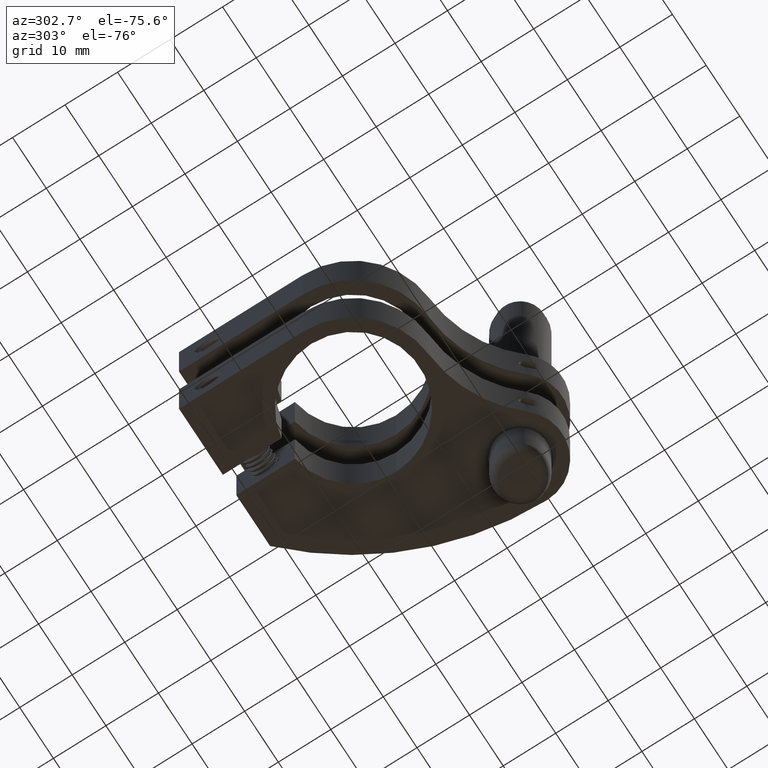
[diagram: clean part render]
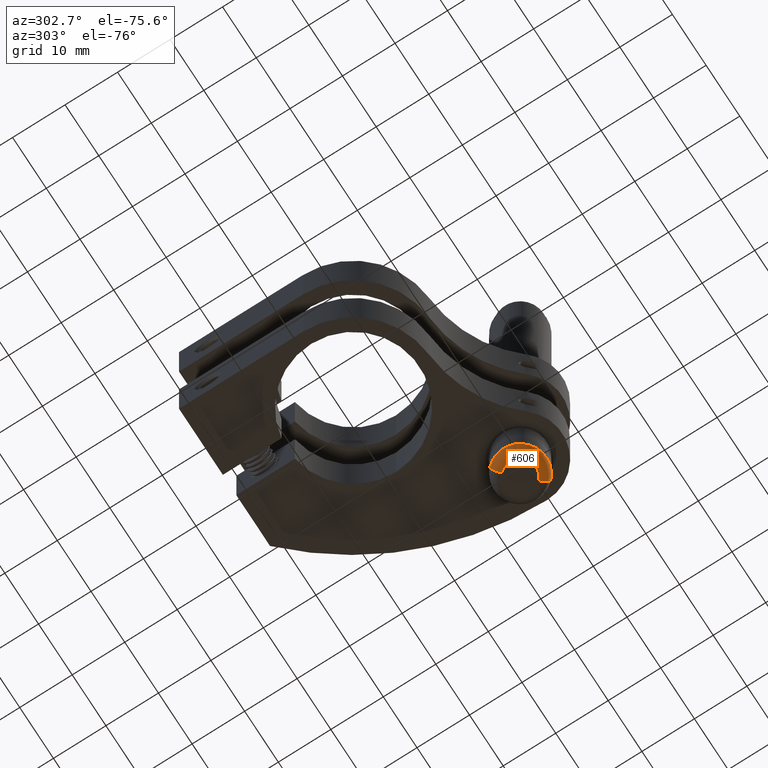
[diagram: same view with one face highlighted and labeled with its STEP entity id]
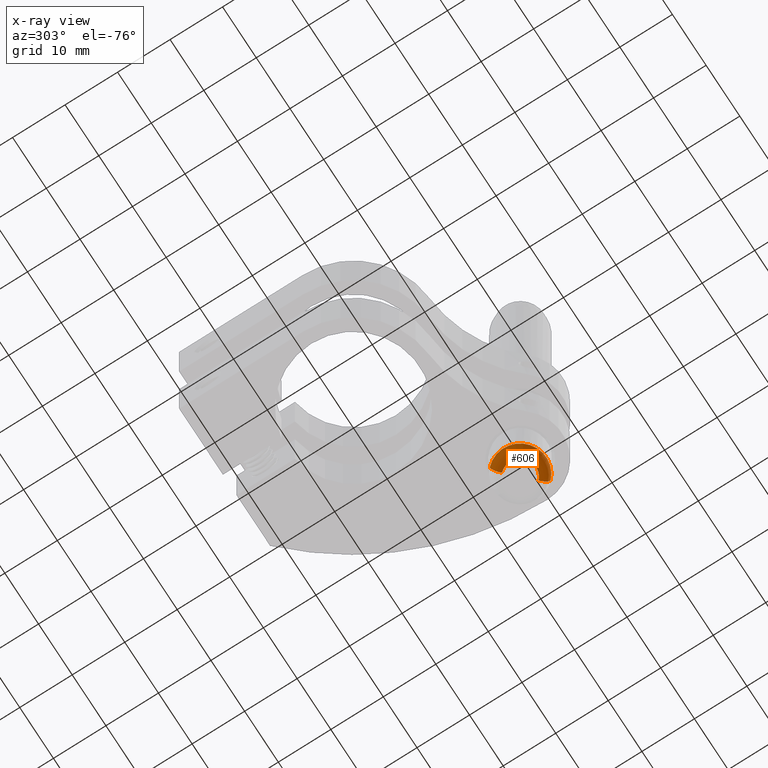
[diagram: x-ray of the same camera — body ghosted, the highlighted face saturated]
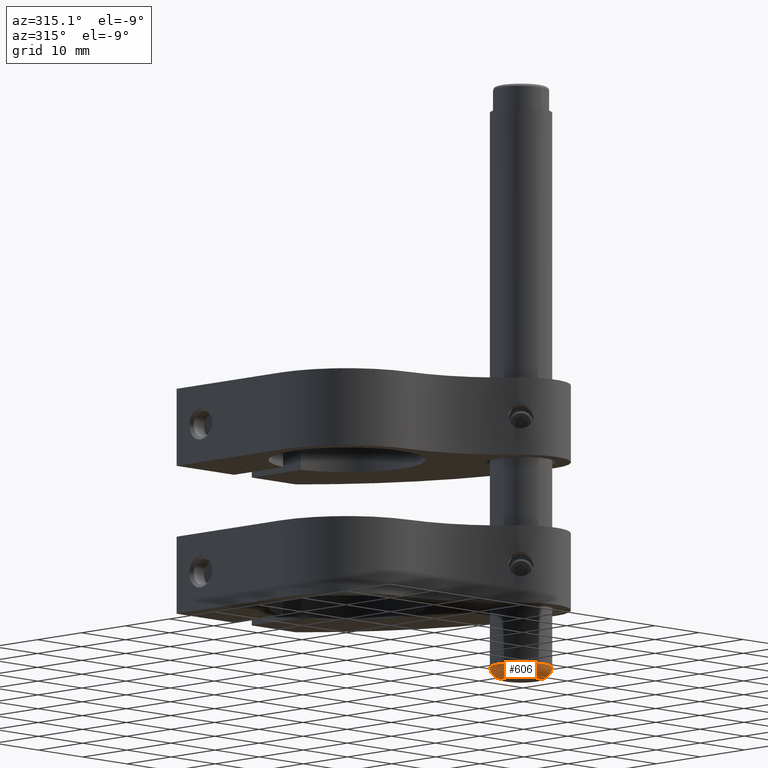
[diagram: same view with one face highlighted and labeled with its STEP entity id]
A machine part, auxiliary view. The second image highlights one B-rep face of the part: STEP entity #606.
The next image is the same camera in x-ray: the body ghosted, the highlighted face saturated — about 0% of this face is hidden behind the body in this view.
A second angle (auxiliary view) of the same face is appended — the face is thin or edge-on in the first view.
In plain terms, the highlighted toroidal blend (fillet) surface has major radius 3 mm and minor (blend) radius 2 mm.
Its self-contained STEP definition (entity closure, byte-faithful):
#533 = VERTEX_POINT ( 'NONE', #8335 ) ;
#606 = ADVANCED_FACE ( 'NONE', ( #1536 ), #7102, .T. ) ;
#670 = CARTESIAN_POINT ( 'NONE',  ( 0.0000000000000000000, -8.673617379884035500E-016, 45.50000000000000000 ) ) ;
#882 = CIRCLE ( 'NONE', #3312, 2.000000000000001800 ) ;
#1137 = CIRCLE ( 'NONE', #20068, 2.000000000000000000 ) ;
#1536 = FACE_OUTER_BOUND ( 'NONE', #5501, .T. ) ;
#1625 = DIRECTION ( 'NONE',  ( 0.0000000000000000000, -1.000000000000000000, 0.0000000000000000000 ) ) ;
#1719 = EDGE_CURVE ( 'NONE', #12037, #6796, #19490, .T. ) ;
#2786 = CARTESIAN_POINT ( 'NONE',  ( -2.999999999999999100, 2.969479253709416500E-015, 43.50000000000000000 ) ) ;
#3312 = AXIS2_PLACEMENT_3D ( 'NONE', #20048, #1625, #13187 ) ;
#4699 = ORIENTED_EDGE ( 'NONE', *, *, #13425, .T. ) ;
#5183 = DIRECTION ( 'NONE',  ( -0.0000000000000000000, -0.0000000000000000000, -1.000000000000000000 ) ) ;
#5266 = CARTESIAN_POINT ( 'NONE',  ( -4.999999999999999100, -8.673617379884035500E-016, 43.50000000000000000 ) ) ;
#5336 = DIRECTION ( 'NONE',  ( 1.000000000000000000, 0.0000000000000000000, 0.0000000000000000000 ) ) ;
#5501 = EDGE_LOOP ( 'NONE', ( #9795, #4699, #18422, #9306 ) ) ;
#5980 = EDGE_CURVE ( 'NONE', #533, #12037, #882, .T. ) ;
#6796 = VERTEX_POINT ( 'NONE', #7620 ) ;
#7102 = TOROIDAL_SURFACE ( 'NONE', #14863, 2.999999999999999100, 2.000000000000000000 ) ;
#7556 = VERTEX_POINT ( 'NONE', #5266 ) ;
#7620 = CARTESIAN_POINT ( 'NONE',  ( -2.999999999999999100, 3.091943933624151600E-015, 45.50000000000000000 ) ) ;
#8276 = CARTESIAN_POINT ( 'NONE',  ( 0.0000000000000000000, 2.602085213965210600E-015, 43.50000000000000000 ) ) ;
#8335 = CARTESIAN_POINT ( 'NONE',  ( 4.999999999999999100, -2.550383384147271700E-016, 43.50000000000000000 ) ) ;
#8847 = CIRCLE ( 'NONE', #15214, 4.999999999999999100 ) ;
#9306 = ORIENTED_EDGE ( 'NONE', *, *, #5980, .F. ) ;
#9795 = ORIENTED_EDGE ( 'NONE', *, *, #20353, .F. ) ;
#12037 = VERTEX_POINT ( 'NONE', #18008 ) ;
#13187 = DIRECTION ( 'NONE',  ( 0.0000000000000000000, 0.0000000000000000000, -1.000000000000000000 ) ) ;
#13425 = EDGE_CURVE ( 'NONE', #7556, #6796, #1137, .T. ) ;
#13534 = DIRECTION ( 'NONE',  ( 0.0000000000000000000, 0.0000000000000000000, 1.000000000000000000 ) ) ;
#14736 = AXIS2_PLACEMENT_3D ( 'NONE', #670, #20794, #20864 ) ;
#14863 = AXIS2_PLACEMENT_3D ( 'NONE', #8276, #13534, #18655 ) ;
#15214 = AXIS2_PLACEMENT_3D ( 'NONE', #15409, #5183, #5336 ) ;
#15409 = CARTESIAN_POINT ( 'NONE',  ( 0.0000000000000000000, 2.602085213965210600E-015, 43.50000000000000000 ) ) ;
#16219 = DIRECTION ( 'NONE',  ( -1.000000000000000000, 1.224646799147352500E-016, 0.0000000000000000000 ) ) ;
#18008 = CARTESIAN_POINT ( 'NONE',  ( 2.999999999999999100, -8.673617379884035500E-016, 45.50000000000000000 ) ) ;
#18422 = ORIENTED_EDGE ( 'NONE', *, *, #1719, .F. ) ;
#18655 = DIRECTION ( 'NONE',  ( 1.000000000000000000, 0.0000000000000000000, 0.0000000000000000000 ) ) ;
#19490 = CIRCLE ( 'NONE', #14736, 2.999999999999999100 ) ;
#20048 = CARTESIAN_POINT ( 'NONE',  ( 2.999999999999999100, 2.602085213965210600E-015, 43.50000000000000000 ) ) ;
#20068 = AXIS2_PLACEMENT_3D ( 'NONE', #2786, #21510, #16219 ) ;
#20353 = EDGE_CURVE ( 'NONE', #7556, #533, #8847, .T. ) ;
#20794 = DIRECTION ( 'NONE',  ( 0.0000000000000000000, 0.0000000000000000000, 1.000000000000000000 ) ) ;
#20864 = DIRECTION ( 'NONE',  ( 1.000000000000000000, 0.0000000000000000000, 0.0000000000000000000 ) ) ;
#21510 = DIRECTION ( 'NONE',  ( 1.224646799147353200E-016, 1.000000000000000000, -0.0000000000000000000 ) ) ;